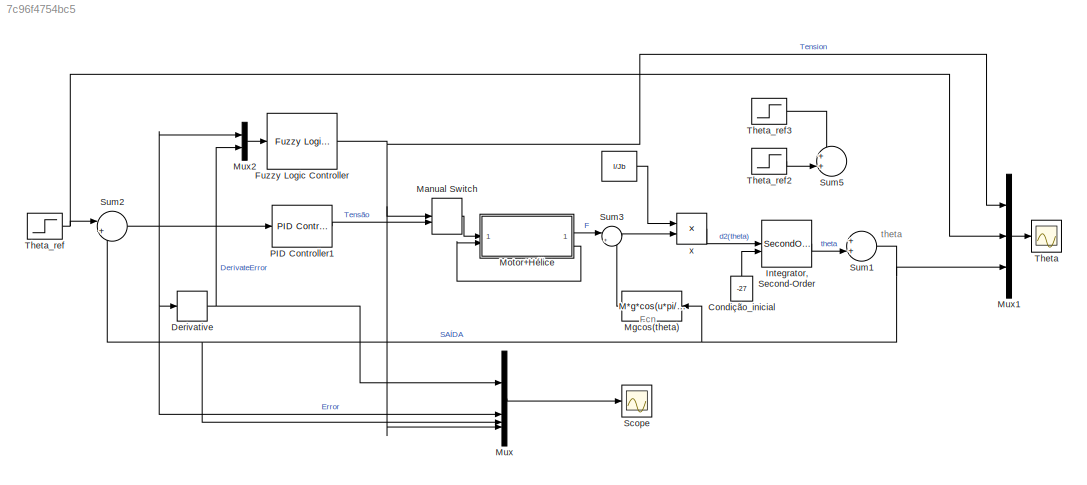
MODEL slx_7c96f4754bc5
KIND model
CONFIG AbsTol = auto
CONFIG EnableMultiTasking = on
CONFIG FixedStep = auto
CONFIG MaxStep = auto
CONFIG MinStep = auto
CONFIG RelTol = 1e-3
CONFIG SampleTimeConstraint = Unconstrained
CONFIG SolverName = ode45
CONFIG StartTime = 0.0
CONFIG StopTime = 120
BLOCK [Constant]   
  Value = l/Jb
BLOCK [Fcn]    Mgcos(theta)
  Expr = M*g*cos(u*pi/180)
  NameLocation = top
BLOCK [Constant]  Condição_inicial
  NameLocation = right
  Value = -27
  VectorParams1D = off
BLOCK [Scope]  Theta
  Floating = off
  NumInputPorts = 1
  ScopeSpecificationString = Simulink.scopes.TimeScopeBlockCfg('CurrentConfiguration', extmgr.ConfigurationSet(extmgr.Configuration('Core','General UI',true),extmgr.Configuration('Core','Source UI',true),extmgr.Configuration('Sources','WiredSimulink',true,'DataLoggingVariableName','ScopeData5','DataLoggingSaveFormat','StructureWithTime','DataLoggingDecimation','1','DataLoggingDecimateData',true),extmgr.Configuration('Visuals'...<+2005ch>
BLOCK [Derivative] Derivative
BLOCK [Reference] Fuzzy Logic Controller  REF=fuzblock/Fuzzy Logic   (lib defined in mdl_858b3b3e7478)
Controller
  SourceBlock = fuzblock/Fuzzy Logic \nController
  SourceType = Fuzzy Inference System
BLOCK [SecondOrderIntegrator] Integrator, Second-Order
  ICSourceX = external
  LimitX = on
  LowerLimitX = -27
  ShowOutput = x
  UpperLimitX = 27
BLOCK [ManualSwitch] Manual Switch
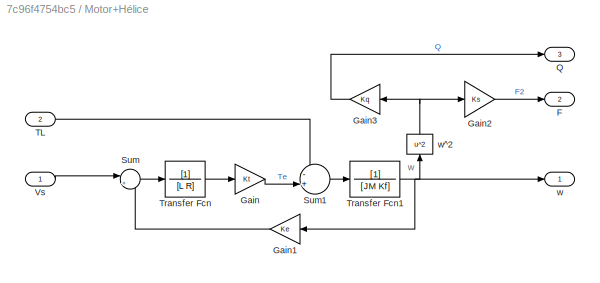
BLOCK [SubSystem] Motor+Hélice
BLOCK [Outport] Motor+Hélice/F
  Port = 2
BLOCK [Gain] Motor+Hélice/Gain
  Gain = Kt
BLOCK [Gain] Motor+Hélice/Gain1
  Gain = Ke
BLOCK [Gain] Motor+Hélice/Gain2
  Gain = Ks
BLOCK [Gain] Motor+Hélice/Gain3
  Gain = Kq
  NameLocation = top
BLOCK [Outport] Motor+Hélice/Q
  Port = 3
BLOCK [Sum] Motor+Hélice/Sum
  Inputs = |+-
BLOCK [Sum] Motor+Hélice/Sum1
  Inputs = -+|
BLOCK [Inport] Motor+Hélice/TL
  Port = 2
BLOCK [TransferFcn] Motor+Hélice/Transfer Fcn
  Denominator = [L R]
BLOCK [TransferFcn] Motor+Hélice/Transfer Fcn1
  Denominator = [JM  Kf]
BLOCK [Inport] Motor+Hélice/Vs
BLOCK [Outport] Motor+Hélice/w
BLOCK [Fcn] Motor+Hélice/w^2
  Expr = u^2
  NameLocation = right
BLOCK [Mux] Mux
  DisplayOption = bar
BLOCK [Mux] Mux1
  DisplayOption = bar
  Inputs = 3
BLOCK [Mux] Mux2
  DisplayOption = bar
  Inputs = 2
BLOCK [Reference] PID Controller1  REF=slpidlib/PID Controller
  SourceBlock = slpidlib/PID Controller
  SourceType = PID 1dof
BLOCK [Scope] Scope
  Floating = off
  NumInputPorts = 1
  ScopeSpecificationString = Simulink.scopes.TimeScopeBlockCfg('CurrentConfiguration', extmgr.ConfigurationSet(extmgr.Configuration('Core','General UI',true),extmgr.Configuration('Core','Source UI',true),extmgr.Configuration('Sources','WiredSimulink',true),extmgr.Configuration('Visuals','Time Domain',true,'SerializedDisplays',{struct('MinYLimReal','-85.78988','MaxYLimReal','17.36802','YLabelReal','','MinYLimMag','0.00000','Ma...<+2002ch>
BLOCK [Sum] Sum1
  Inputs = ++|
BLOCK [Sum] Sum2
  Inputs = |+-
BLOCK [Sum] Sum3
  Inputs = |+-
BLOCK [Sum] Sum5
  Inputs = ++|
BLOCK [Step] Theta_ref
  After = 0
  SampleTime = 0
  Time = 0
  ZeroCross = off
BLOCK [Step] Theta_ref2
  After = 15
  SampleTime = 0
  Time = 43
  ZeroCross = off
BLOCK [Step] Theta_ref3
  After = -15
  SampleTime = 0
  Time = 40
  ZeroCross = off
BLOCK [Product] x
ANNOTATION (root): Fcn
ANNOTATION (root): theta
ANNOTATION Motor+Hélice: w
LINE    Mgcos(theta):1 -> Sum3:2
LINE   :1 -> x:1
LINE  Condição_inicial:1 -> Integrator, Second-Order:2
NET Derivative:1 -> Mux2:2, Mux:1
NET Fuzzy Logic Controller:1 -> Manual Switch:1, Mux1:1, Mux:4
LINE Integrator, Second-Order:1 -> Sum1:2
LINE Manual Switch:1 -> Motor+Hélice:1
LINE Motor+Hélice/Gain1:1 -> Motor+Hélice/Sum:2
LINE Motor+Hélice/Gain2:1 -> Motor+Hélice/F:1
LINE Motor+Hélice/Gain3:1 -> Motor+Hélice/Q:1
LINE Motor+Hélice/Gain:1 -> Motor+Hélice/Sum1:2
LINE Motor+Hélice/Sum1:1 -> Motor+Hélice/Transfer Fcn1:1
LINE Motor+Hélice/Sum:1 -> Motor+Hélice/Transfer Fcn:1
LINE Motor+Hélice/TL:1 -> Motor+Hélice/Sum1:1
NET Motor+Hélice/Transfer Fcn1:1 -> Motor+Hélice/Gain1:1, Motor+Hélice/w:1, Motor+Hélice/w^2:1
LINE Motor+Hélice/Transfer Fcn:1 -> Motor+Hélice/Gain:1
LINE Motor+Hélice/Vs:1 -> Motor+Hélice/Sum:1
NET Motor+Hélice/w^2:1 -> Motor+Hélice/Gain2:1, Motor+Hélice/Gain3:1
LINE Motor+Hélice:2 -> Sum3:1
LINE Motor+Hélice:3 -> Motor+Hélice:2
LINE Mux1:1 ->  Theta:1
LINE Mux2:1 -> Fuzzy Logic Controller:1
LINE Mux:1 -> Scope:1
LINE PID Controller1:1 -> Manual Switch:2
NET Sum1:1 ->    Mgcos(theta):1, Mux1:3, Mux:3, Sum2:2
NET Sum2:1 -> Derivative:1, Mux2:1, Mux:2, PID Controller1:1
LINE Sum3:1 -> x:2
LINE Theta_ref2:1 -> Sum5:2
LINE Theta_ref3:1 -> Sum5:1
NET Theta_ref:1 -> Mux1:2, Sum2:1
LINE x:1 -> Integrator, Second-Order:1
note: NET lines group one-source signal fan-out (src -> all destinations, sorted); 1:1 wires keep LINE
